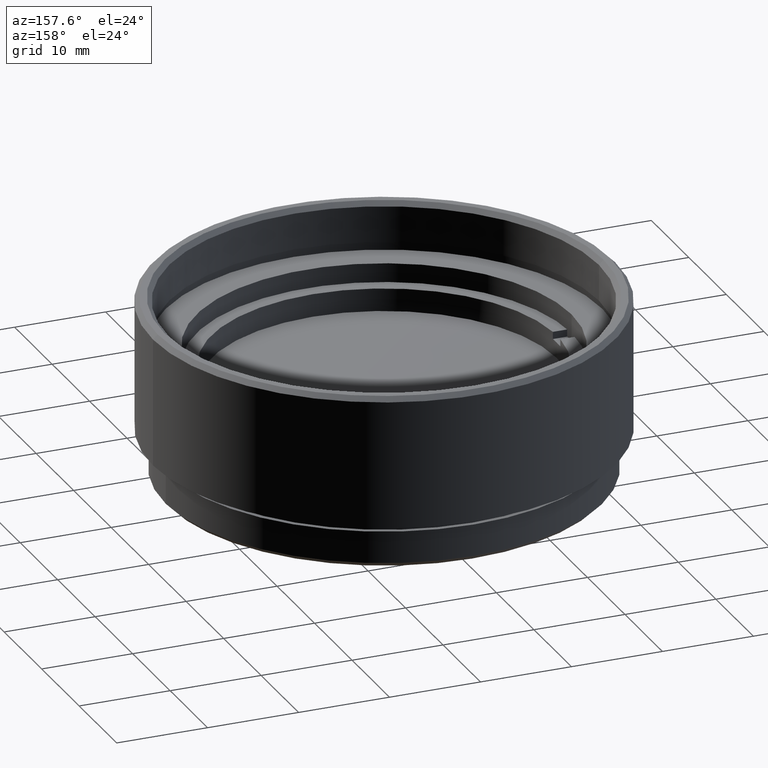
[diagram: clean part render]
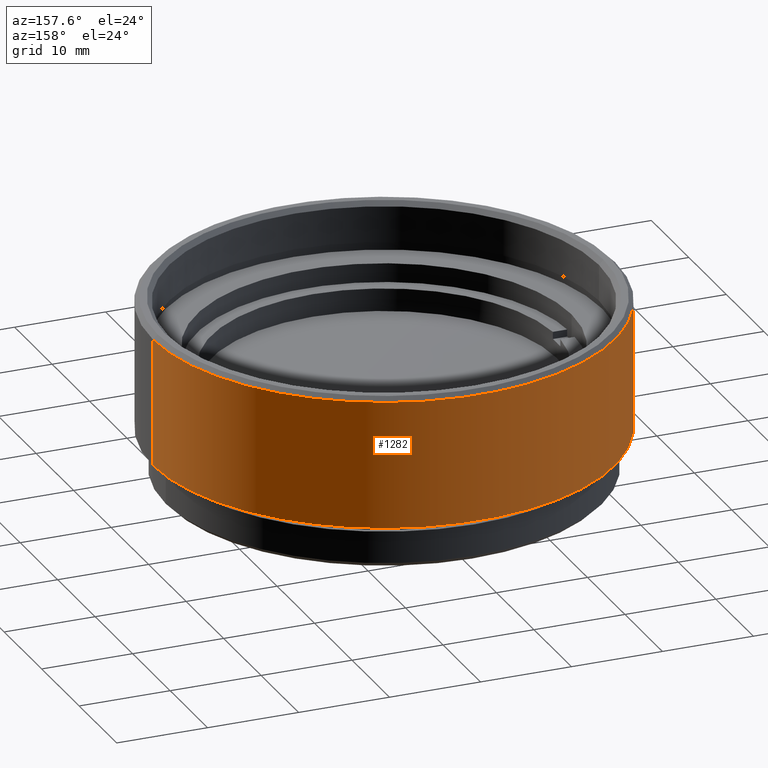
[diagram: same view with one face highlighted and labeled with its STEP entity id]
A machine part, auxiliary view. The second image highlights one B-rep face of the part: STEP entity #1282.
In plain terms, the highlighted cylindrical surface (partial cylindrical patch) has radius 25.4 mm, axis along (-0, -0, -1).
Its self-contained STEP definition (entity closure, byte-faithful):
#75 = ORIENTED_EDGE ( 'NONE', *, *, #1484, .T. ) ;
#179 = DIRECTION ( 'NONE',  ( 0.000000000000000000, 0.000000000000000000, -1.000000000000000000 ) ) ;
#269 = EDGE_CURVE ( 'NONE', #502, #1691, #1074, .T. ) ;
#270 = CARTESIAN_POINT ( 'NONE',  ( 0.000000000000000000, 0.000000000000000000, 19.50000000000000000 ) ) ;
#315 = EDGE_LOOP ( 'NONE', ( #893, #75, #469, #889 ) ) ;
#438 = CYLINDRICAL_SURFACE ( 'NONE', #1275, 25.39999999999999858 ) ;
#469 = ORIENTED_EDGE ( 'NONE', *, *, #834, .F. ) ;
#481 = CIRCLE ( 'NONE', #1462, 25.39999999999999858 ) ;
#493 = VECTOR ( 'NONE', #1220, 1000.000000000000000 ) ;
#502 = VERTEX_POINT ( 'NONE', #1877 ) ;
#520 = AXIS2_PLACEMENT_3D ( 'NONE', #1268, #1611, #1876 ) ;
#523 = CARTESIAN_POINT ( 'NONE',  ( -25.39999999999999858, 0.000000000000000000, 5.000000000000000000 ) ) ;
#797 = CARTESIAN_POINT ( 'NONE',  ( -25.39999999999999858, 0.000000000000000000, 19.50000000000000000 ) ) ;
#808 = VECTOR ( 'NONE', #1696, 1000.000000000000000 ) ;
#834 = EDGE_CURVE ( 'NONE', #1691, #1008, #481, .T. ) ;
#849 = CIRCLE ( 'NONE', #520, 25.39999999999999858 ) ;
#889 = ORIENTED_EDGE ( 'NONE', *, *, #269, .F. ) ;
#893 = ORIENTED_EDGE ( 'NONE', *, *, #1740, .T. ) ;
#911 = CARTESIAN_POINT ( 'NONE',  ( 0.000000000000000000, 0.000000000000000000, 5.000000000000000000 ) ) ;
#930 = CARTESIAN_POINT ( 'NONE',  ( 25.39999999999999858, 3.110602869834276865E-15, 5.000000000000000000 ) ) ;
#968 = FACE_OUTER_BOUND ( 'NONE', #315, .T. ) ;
#986 = CARTESIAN_POINT ( 'NONE',  ( 25.39999999999999858, 3.110602869834276865E-15, 18.99999999999998579 ) ) ;
#1008 = VERTEX_POINT ( 'NONE', #930 ) ;
#1074 = LINE ( 'NONE', #797, #808 ) ;
#1123 = DIRECTION ( 'NONE',  ( -0.000000000000000000, -0.000000000000000000, -1.000000000000000000 ) ) ;
#1154 = DIRECTION ( 'NONE',  ( -1.000000000000000000, 0.000000000000000000, 0.000000000000000000 ) ) ;
#1220 = DIRECTION ( 'NONE',  ( -0.000000000000000000, -0.000000000000000000, -1.000000000000000000 ) ) ;
#1268 = CARTESIAN_POINT ( 'NONE',  ( 0.000000000000000000, 0.000000000000000000, 18.99999999999998579 ) ) ;
#1275 = AXIS2_PLACEMENT_3D ( 'NONE', #270, #1123, #1154 ) ;
#1282 = ADVANCED_FACE ( 'NONE', ( #968 ), #438, .T. ) ;
#1359 = CARTESIAN_POINT ( 'NONE',  ( 25.39999999999999858, 3.110602869834276865E-15, 19.50000000000000000 ) ) ;
#1462 = AXIS2_PLACEMENT_3D ( 'NONE', #911, #179, #1905 ) ;
#1484 = EDGE_CURVE ( 'NONE', #1895, #1008, #1656, .T. ) ;
#1611 = DIRECTION ( 'NONE',  ( 0.000000000000000000, 0.000000000000000000, -1.000000000000000000 ) ) ;
#1656 = LINE ( 'NONE', #1359, #493 ) ;
#1691 = VERTEX_POINT ( 'NONE', #523 ) ;
#1696 = DIRECTION ( 'NONE',  ( -0.000000000000000000, -0.000000000000000000, -1.000000000000000000 ) ) ;
#1740 = EDGE_CURVE ( 'NONE', #502, #1895, #849, .T. ) ;
#1876 = DIRECTION ( 'NONE',  ( 1.000000000000000000, 0.000000000000000000, 0.000000000000000000 ) ) ;
#1877 = CARTESIAN_POINT ( 'NONE',  ( -25.39999999999999858, 0.000000000000000000, 18.99999999999998579 ) ) ;
#1895 = VERTEX_POINT ( 'NONE', #986 ) ;
#1905 = DIRECTION ( 'NONE',  ( -1.000000000000000000, 0.000000000000000000, 0.000000000000000000 ) ) ;